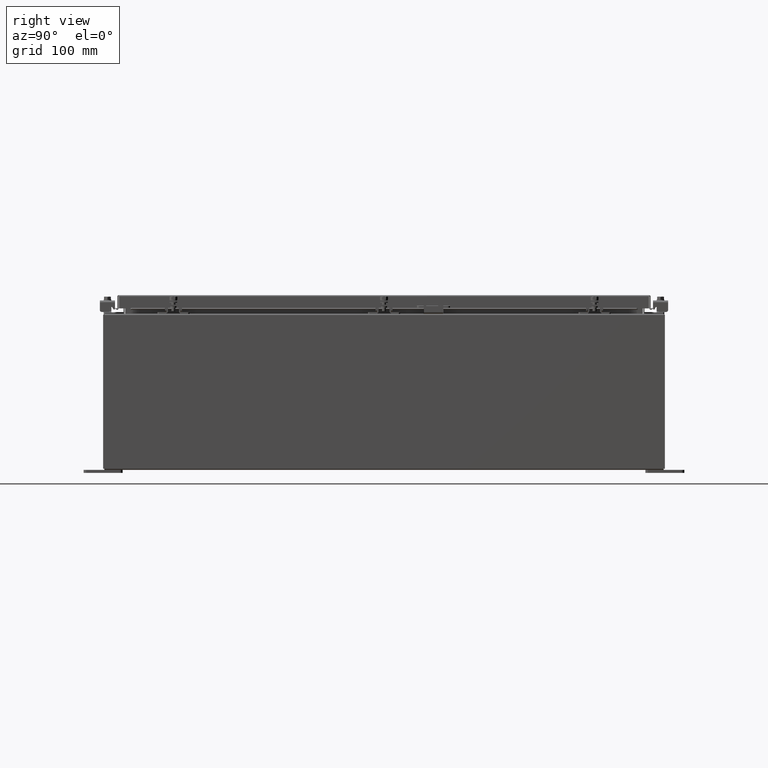
[diagram: clean part render]
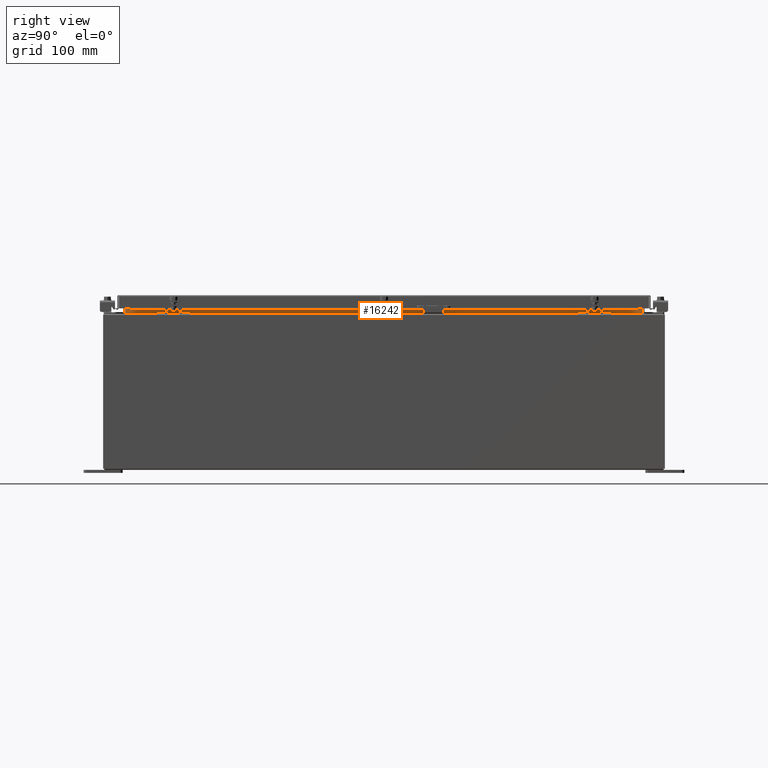
[diagram: same view with one face highlighted and labeled with its STEP entity id]
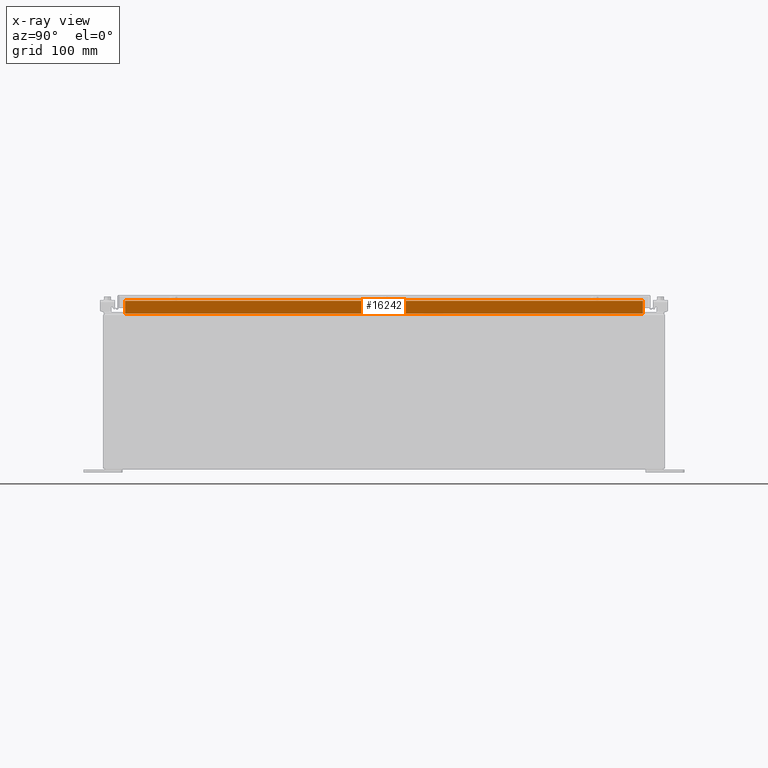
[diagram: x-ray of the same camera — body ghosted, the highlighted face saturated]
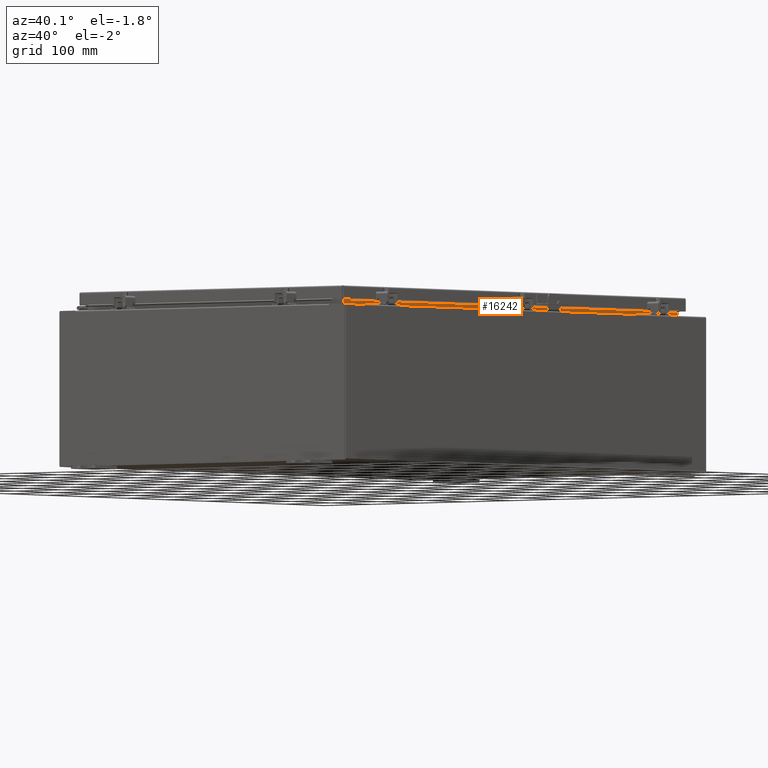
[diagram: same view with one face highlighted and labeled with its STEP entity id]
A machine part, right view. The second image highlights one B-rep face of the part: STEP entity #16242.
The next image is the same camera in x-ray: the body ghosted, the highlighted face saturated — about 0% of this face is hidden behind the body in this view.
A second angle (auxiliary view) of the same face is appended — the face is thin or edge-on in the first view.
In plain terms, the highlighted planar face has unit normal (1, -0, -0).
Its self-contained STEP definition (entity closure, byte-faithful):
#356 = PLANE ( 'NONE',  #37824 ) ;
#1681 = CARTESIAN_POINT ( 'NONE',  ( 10.69970000000003700, 16.59374999999999600, 9.938300000000014100 ) ) ;
#1883 = EDGE_CURVE ( 'NONE', #11782, #32502, #21010, .T. ) ;
#4890 = CARTESIAN_POINT ( 'NONE',  ( 10.69970000000003700, 16.59374999999999600, 9.925300000000008900 ) ) ;
#6915 = LINE ( 'NONE', #17048, #32969 ) ;
#7645 = ORIENTED_EDGE ( 'NONE', *, *, #9750, .F. ) ;
#8124 = ORIENTED_EDGE ( 'NONE', *, *, #1883, .F. ) ;
#9183 = DIRECTION ( 'NONE',  ( 0.0000000000000000000, 1.000000000000000000, 0.0000000000000000000 ) ) ;
#9750 = EDGE_CURVE ( 'NONE', #27834, #35635, #6915, .T. ) ;
#10164 = DIRECTION ( 'NONE',  ( -2.361913319930198800E-015, 0.0000000000000000000, -1.000000000000000000 ) ) ;
#11782 = VERTEX_POINT ( 'NONE', #1681 ) ;
#12151 = CARTESIAN_POINT ( 'NONE',  ( 10.69970000000004600, 16.59374999999999600, 10.76290000000000700 ) ) ;
#12338 = VECTOR ( 'NONE', #29815, 39.37007874015748100 ) ;
#15676 = EDGE_LOOP ( 'NONE', ( #30764, #7645, #34402, #8124 ) ) ;
#16242 = ADVANCED_FACE ( 'NONE', ( #29822 ), #356, .T. ) ;
#16470 = LINE ( 'NONE', #4890, #41357 ) ;
#17048 = CARTESIAN_POINT ( 'NONE',  ( 10.69970000000004600, -16.59375000000000000, 10.76290000000000700 ) ) ;
#18023 = DIRECTION ( 'NONE',  ( -2.361913319930198800E-015, -0.0000000000000000000, -1.000000000000000000 ) ) ;
#21010 = LINE ( 'NONE', #31390, #12338 ) ;
#25038 = CARTESIAN_POINT ( 'NONE',  ( 10.69970000000003700, -16.59374999999999600, 9.938300000000014100 ) ) ;
#27308 = CARTESIAN_POINT ( 'NONE',  ( 10.69970000000003900, -16.59375000000000000, 10.76290000000000700 ) ) ;
#27488 = DIRECTION ( 'NONE',  ( 2.361913319930198800E-015, -0.0000000000000000000, 1.000000000000000000 ) ) ;
#27834 = VERTEX_POINT ( 'NONE', #27308 ) ;
#28911 = VECTOR ( 'NONE', #27488, 39.37007874015748100 ) ;
#29741 = DIRECTION ( 'NONE',  ( 1.000000000000000000, -1.555377937900767200E-031, -2.361913319930198800E-015 ) ) ;
#29815 = DIRECTION ( 'NONE',  ( 0.0000000000000000000, -1.000000000000000000, 1.975573690333478700E-016 ) ) ;
#29822 = FACE_OUTER_BOUND ( 'NONE', #15676, .T. ) ;
#30634 = EDGE_CURVE ( 'NONE', #32502, #27834, #38534, .T. ) ;
#30764 = ORIENTED_EDGE ( 'NONE', *, *, #32927, .F. ) ;
#31390 = CARTESIAN_POINT ( 'NONE',  ( 10.69970000000003400, 16.59374999999999600, 9.938300000000008800 ) ) ;
#32502 = VERTEX_POINT ( 'NONE', #25038 ) ;
#32877 = CARTESIAN_POINT ( 'NONE',  ( 10.69970000000001200, -1.664207732215685800E-030, -2.527176394925717600E-014 ) ) ;
#32927 = EDGE_CURVE ( 'NONE', #35635, #11782, #16470, .T. ) ;
#32969 = VECTOR ( 'NONE', #9183, 39.37007874015748100 ) ;
#33889 = CARTESIAN_POINT ( 'NONE',  ( 10.69970000000003900, -16.59375000000000000, 10.85060000000001100 ) ) ;
#34402 = ORIENTED_EDGE ( 'NONE', *, *, #30634, .F. ) ;
#35635 = VERTEX_POINT ( 'NONE', #12151 ) ;
#37824 = AXIS2_PLACEMENT_3D ( 'NONE', #32877, #29741, #10164 ) ;
#38534 = LINE ( 'NONE', #33889, #28911 ) ;
#41357 = VECTOR ( 'NONE', #18023, 39.37007874015748100 ) ;